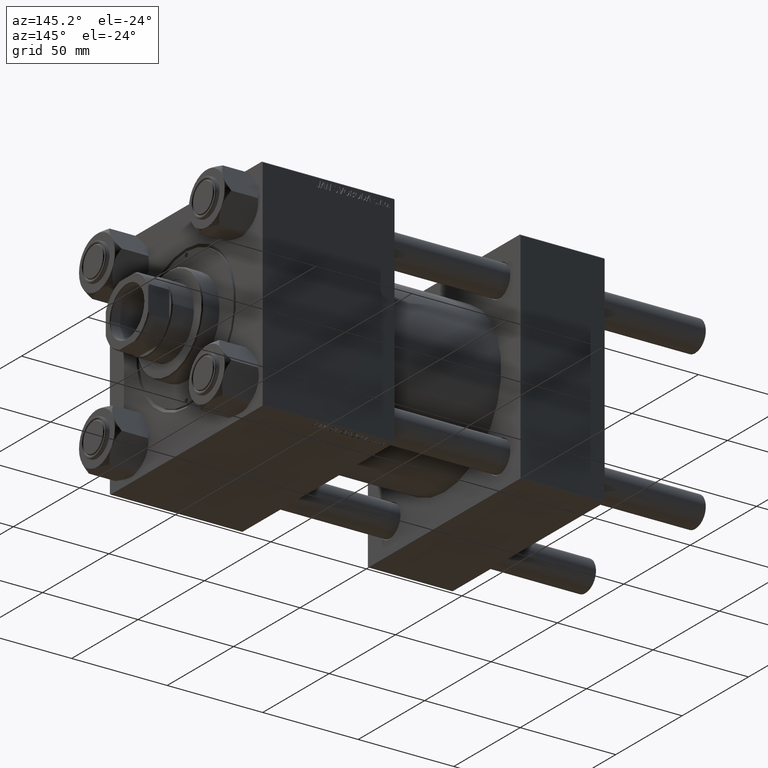
[diagram: clean part render]
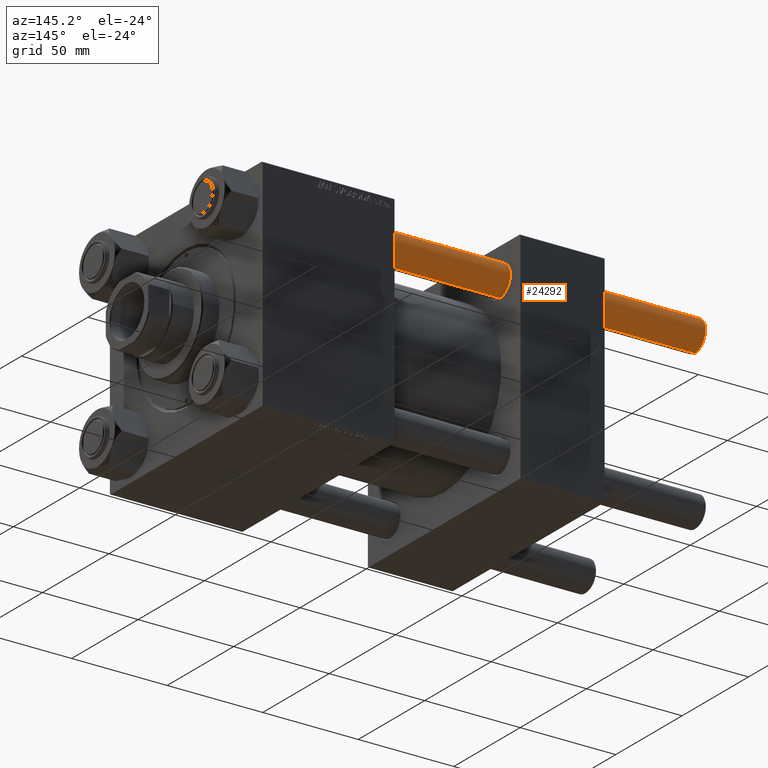
[diagram: same view with one face highlighted and labeled with its STEP entity id]
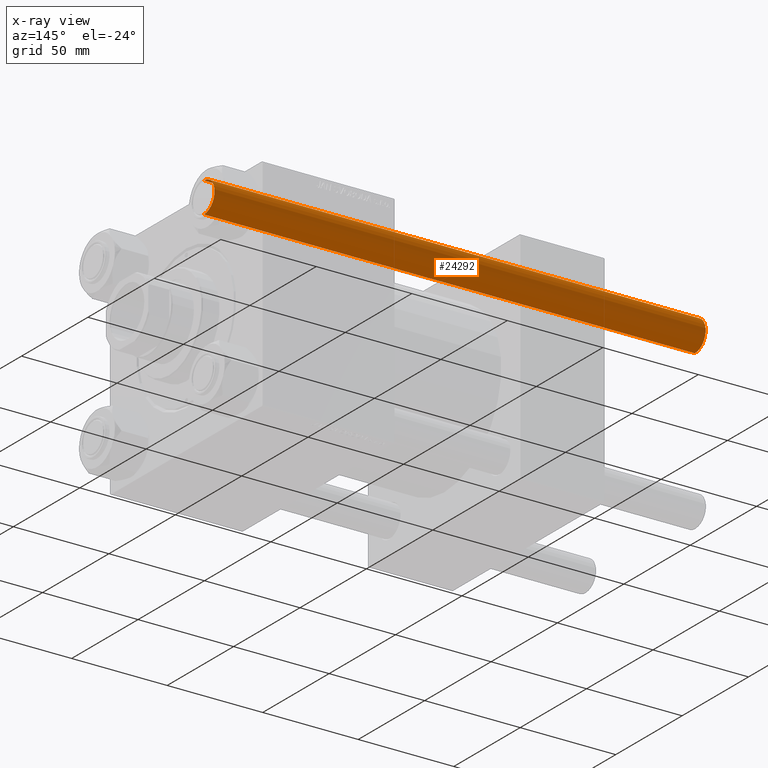
[diagram: x-ray of the same camera — body ghosted, the highlighted face saturated]
A machine part, auxiliary view. The second image highlights one B-rep face of the part: STEP entity #24292.
The next image is the same camera in x-ray: the body ghosted, the highlighted face saturated — about 0% of this face is hidden behind the body in this view.
In plain terms, the highlighted cylindrical surface (edge-blend (fillet) strip) has radius 8 mm, axis along (-1, -0, -0).
Its self-contained STEP definition (entity closure, byte-faithful):
#1029 = CARTESIAN_POINT ( 'NONE',  ( 0.000000000000000000, 0.000000000000000000, 257.4999999999999432 ) ) ;
#2951 = DIRECTION ( 'NONE',  ( 1.000000000000000000, 0.000000000000000000, 0.000000000000000000 ) ) ;
#3416 = VERTEX_POINT ( 'NONE', #39484 ) ;
#6259 = AXIS2_PLACEMENT_3D ( 'NONE', #16801, #13230, #40737 ) ;
#6509 = DIRECTION ( 'NONE',  ( -0.000000000000000000, -0.000000000000000000, 1.000000000000000000 ) ) ;
#9570 = VERTEX_POINT ( 'NONE', #40584 ) ;
#10328 = CARTESIAN_POINT ( 'NONE',  ( 0.000000000000000000, 0.000000000000000000, 0.4999999999999449329 ) ) ;
#11314 = LINE ( 'NONE', #15138, #43462 ) ;
#11597 = CARTESIAN_POINT ( 'NONE',  ( 8.000000000000000000, 9.797174393178825657E-16, 0.4999999999999449329 ) ) ;
#13230 = DIRECTION ( 'NONE',  ( -0.000000000000000000, -0.000000000000000000, -1.000000000000000000 ) ) ;
#13483 = CYLINDRICAL_SURFACE ( 'NONE', #6259, 8.000000000000000000 ) ;
#14757 = EDGE_CURVE ( 'NONE', #49364, #25752, #23833, .T. ) ;
#14922 = CARTESIAN_POINT ( 'NONE',  ( 8.000000000000000000, 9.797174393178825657E-16, 258.0000000000000000 ) ) ;
#15138 = CARTESIAN_POINT ( 'NONE',  ( -8.000000000000000000, 0.000000000000000000, 258.0000000000000000 ) ) ;
#16518 = VECTOR ( 'NONE', #30462, 1000.000000000000000 ) ;
#16801 = CARTESIAN_POINT ( 'NONE',  ( 0.000000000000000000, 0.000000000000000000, 258.0000000000000000 ) ) ;
#18451 = EDGE_CURVE ( 'NONE', #3416, #9570, #11314, .T. ) ;
#20254 = EDGE_CURVE ( 'NONE', #3416, #49364, #26416, .T. ) ;
#23833 = LINE ( 'NONE', #14922, #16518 ) ;
#24292 = ADVANCED_FACE ( 'NONE', ( #40236 ), #13483, .T. ) ;
#25634 = AXIS2_PLACEMENT_3D ( 'NONE', #1029, #44311, #47885 ) ;
#25752 = VERTEX_POINT ( 'NONE', #11597 ) ;
#26416 = CIRCLE ( 'NONE', #25634, 8.000000000000000000 ) ;
#26792 = EDGE_LOOP ( 'NONE', ( #42863, #49782, #44513, #36781 ) ) ;
#30462 = DIRECTION ( 'NONE',  ( -0.000000000000000000, -0.000000000000000000, -1.000000000000000000 ) ) ;
#32282 = CIRCLE ( 'NONE', #43711, 8.000000000000000000 ) ;
#36781 = ORIENTED_EDGE ( 'NONE', *, *, #18451, .F. ) ;
#39484 = CARTESIAN_POINT ( 'NONE',  ( -8.000000000000000000, 0.000000000000000000, 257.4999999999999432 ) ) ;
#40236 = FACE_OUTER_BOUND ( 'NONE', #26792, .T. ) ;
#40584 = CARTESIAN_POINT ( 'NONE',  ( -8.000000000000000000, 0.000000000000000000, 0.4999999999999449329 ) ) ;
#40737 = DIRECTION ( 'NONE',  ( -1.000000000000000000, 0.000000000000000000, 0.000000000000000000 ) ) ;
#42550 = CARTESIAN_POINT ( 'NONE',  ( 8.000000000000000000, 9.797174393178825657E-16, 257.4999999999999432 ) ) ;
#42863 = ORIENTED_EDGE ( 'NONE', *, *, #20254, .T. ) ;
#43462 = VECTOR ( 'NONE', #45977, 1000.000000000000000 ) ;
#43711 = AXIS2_PLACEMENT_3D ( 'NONE', #10328, #6509, #2951 ) ;
#44311 = DIRECTION ( 'NONE',  ( 0.000000000000000000, 0.000000000000000000, -1.000000000000000000 ) ) ;
#44513 = ORIENTED_EDGE ( 'NONE', *, *, #48684, .T. ) ;
#45977 = DIRECTION ( 'NONE',  ( -0.000000000000000000, -0.000000000000000000, -1.000000000000000000 ) ) ;
#47885 = DIRECTION ( 'NONE',  ( 1.000000000000000000, 0.000000000000000000, 0.000000000000000000 ) ) ;
#48684 = EDGE_CURVE ( 'NONE', #25752, #9570, #32282, .T. ) ;
#49364 = VERTEX_POINT ( 'NONE', #42550 ) ;
#49782 = ORIENTED_EDGE ( 'NONE', *, *, #14757, .T. ) ;